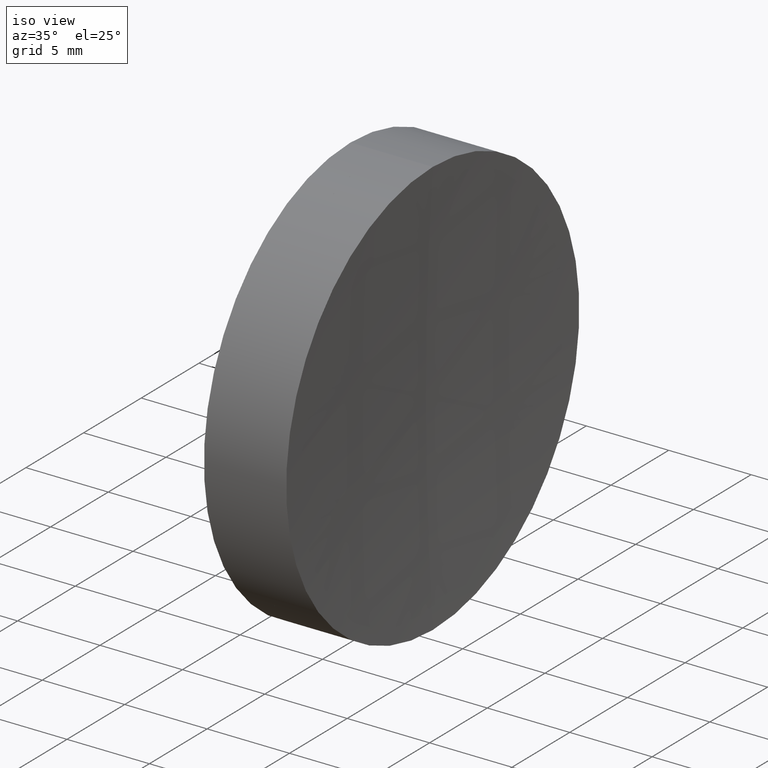
[diagram: clean part render]
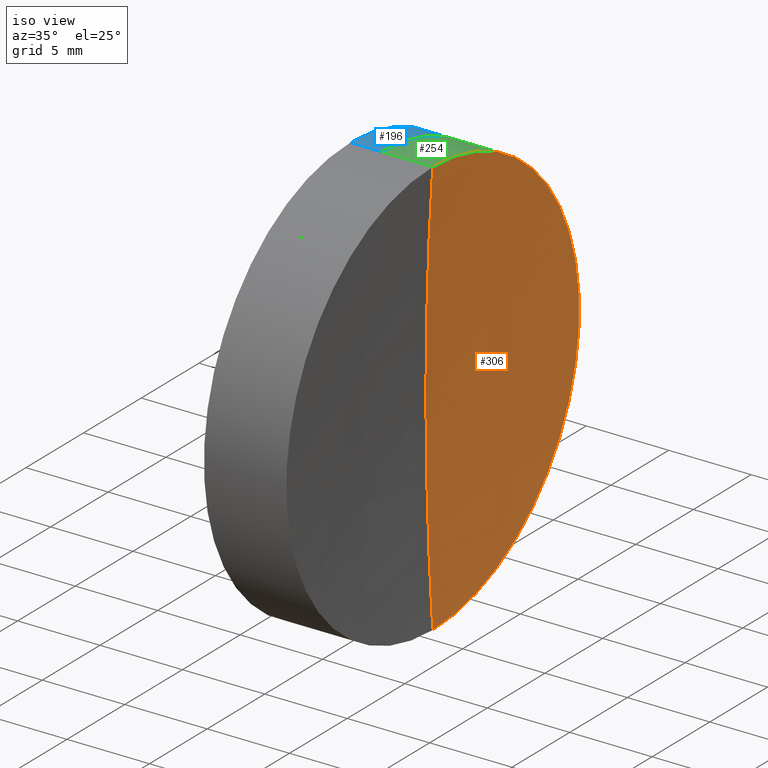
[diagram: same view with three faces highlighted in distinct colors, each labeled with its STEP entity id]
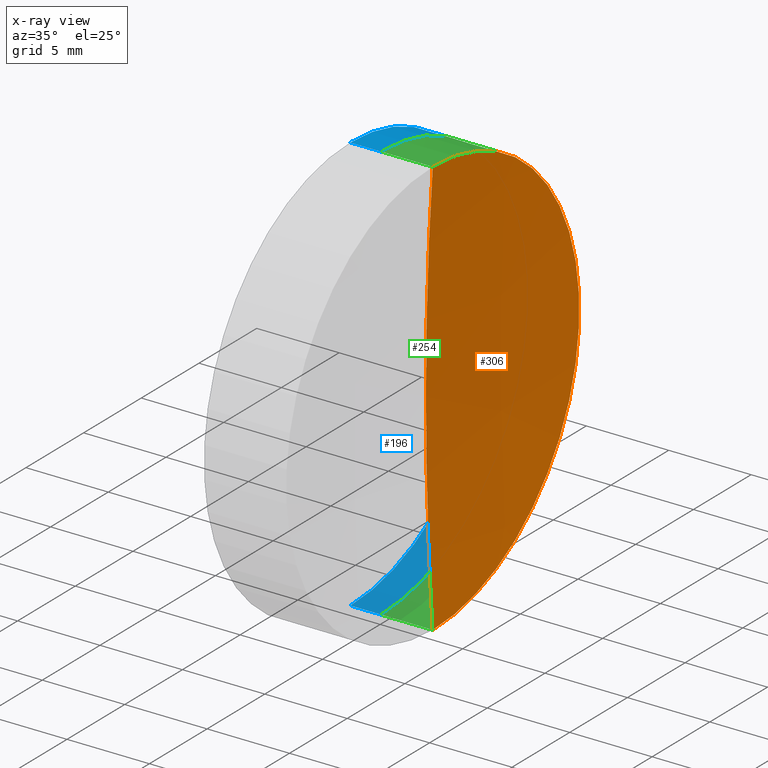
[diagram: x-ray of the same camera — body ghosted, the three highlighted faces saturated]
A machine part, iso view with three faces highlighted in distinct colors.
The next image is the same camera in x-ray (body ghosted, the three faces saturated) — at least one of them is partly hidden behind the body in this view.
Their STEP definitions:

[orange] entity #306 — the highlighted spherical surface has radius 194.54 mm.
#2 = VERTEX_POINT ( 'NONE', #332 ) ;
#21 = VERTEX_POINT ( 'NONE', #227 ) ;
#41 = DIRECTION ( 'NONE',  ( 0.0000000000000000000, 1.000000000000000000, -0.0000000000000000000 ) ) ;
#49 = DIRECTION ( 'NONE',  ( 0.0000000000000000000, -1.000000000000000000, -1.224646799147353200E-016 ) ) ;
#53 = CIRCLE ( 'NONE', #279, 194.5399999999999900 ) ;
#72 = ORIENTED_EDGE ( 'NONE', *, *, #161, .F. ) ;
#86 = DIRECTION ( 'NONE',  ( 0.0000000000000000000, 0.0000000000000000000, 1.000000000000000000 ) ) ;
#89 = CARTESIAN_POINT ( 'NONE',  ( 98.19036787198696500, -1.555301434917148100E-015, 12.70000000000007900 ) ) ;
#113 = DIRECTION ( 'NONE',  ( -1.000000000000000000, -0.0000000000000000000, -0.0000000000000000000 ) ) ;
#137 = FACE_OUTER_BOUND ( 'NONE', #176, .T. ) ;
#140 = AXIS2_PLACEMENT_3D ( 'NONE', #213, #328, #345 ) ;
#148 = ORIENTED_EDGE ( 'NONE', *, *, #217, .F. ) ;
#156 = ORIENTED_EDGE ( 'NONE', *, *, #322, .T. ) ;
#159 = DIRECTION ( 'NONE',  ( 0.0000000000000000000, 1.224646799147353200E-016, -1.000000000000000000 ) ) ;
#161 = EDGE_CURVE ( 'NONE', #174, #2, #251, .T. ) ;
#167 = CIRCLE ( 'NONE', #195, 194.5399999999999900 ) ;
#174 = VERTEX_POINT ( 'NONE', #89 ) ;
#176 = EDGE_LOOP ( 'NONE', ( #72, #156, #148 ) ) ;
#189 = AXIS2_PLACEMENT_3D ( 'NONE', #249, #113, #86 ) ;
#195 = AXIS2_PLACEMENT_3D ( 'NONE', #237, #49, #159 ) ;
#202 = CARTESIAN_POINT ( 'NONE',  ( 292.3153832615549300, 0.0000000000000000000, 0.0000000000000000000 ) ) ;
#213 = CARTESIAN_POINT ( 'NONE',  ( 292.3153832615549300, 0.0000000000000000000, 0.0000000000000000000 ) ) ;
#217 = EDGE_CURVE ( 'NONE', #2, #21, #53, .T. ) ;
#227 = CARTESIAN_POINT ( 'NONE',  ( 97.77538326155493600, 0.0000000000000000000, -1.191213941530630400E-014 ) ) ;
#229 = DIRECTION ( 'NONE',  ( 0.0000000000000000000, 0.0000000000000000000, 1.000000000000000000 ) ) ;
#237 = CARTESIAN_POINT ( 'NONE',  ( 292.3153832615549300, 0.0000000000000000000, 0.0000000000000000000 ) ) ;
#249 = CARTESIAN_POINT ( 'NONE',  ( 98.19036787198697900, 0.0000000000000000000, 0.0000000000000000000 ) ) ;
#251 = CIRCLE ( 'NONE', #189, 12.70000000000010100 ) ;
#279 = AXIS2_PLACEMENT_3D ( 'NONE', #202, #41, #229 ) ;
#306 = ADVANCED_FACE ( 'NONE', ( #137 ), #339, .F. ) ;
#322 = EDGE_CURVE ( 'NONE', #174, #21, #167, .T. ) ;
#328 = DIRECTION ( 'NONE',  ( -0.0000000000000000000, -1.000000000000000000, -0.0000000000000000000 ) ) ;
#332 = CARTESIAN_POINT ( 'NONE',  ( 98.19036787198696500, 0.0000000000000000000, -12.70000000000007900 ) ) ;
#339 = SPHERICAL_SURFACE ( 'NONE', #140, 194.5399999999999900 ) ;
#345 = DIRECTION ( 'NONE',  ( 0.0000000000000000000, 0.0000000000000000000, -1.000000000000000000 ) ) ;

[blue] entity #196 — the highlighted cylindrical surface (partial cylindrical patch) has radius 12.7 mm, axis along (-1, -0, -0).
#10 = ORIENTED_EDGE ( 'NONE', *, *, #198, .T. ) ;
#17 = EDGE_CURVE ( 'NONE', #218, #347, #48, .T. ) ;
#31 = CARTESIAN_POINT ( 'NONE',  ( -0.8160621761658039000, 0.0000000000000000000, 12.70000000000001700 ) ) ;
#33 = FACE_OUTER_BOUND ( 'NONE', #295, .T. ) ;
#39 = CARTESIAN_POINT ( 'NONE',  ( 95.07472966492228700, 0.0000000000000000000, 0.0000000000000000000 ) ) ;
#46 = AXIS2_PLACEMENT_3D ( 'NONE', #39, #199, #71 ) ;
#48 = LINE ( 'NONE', #31, #58 ) ;
#56 = EDGE_CURVE ( 'NONE', #347, #135, #78, .T. ) ;
#58 = VECTOR ( 'NONE', #223, 1000.000000000000000 ) ;
#59 = VERTEX_POINT ( 'NONE', #258 ) ;
#61 = DIRECTION ( 'NONE',  ( 0.0000000000000000000, 0.0000000000000000000, 1.000000000000000000 ) ) ;
#71 = DIRECTION ( 'NONE',  ( 0.0000000000000000000, 0.0000000000000000000, 1.000000000000000000 ) ) ;
#78 = CIRCLE ( 'NONE', #265, 12.70000000000001700 ) ;
#85 = DIRECTION ( 'NONE',  ( -1.000000000000000000, -0.0000000000000000000, -0.0000000000000000000 ) ) ;
#123 = ORIENTED_EDGE ( 'NONE', *, *, #184, .T. ) ;
#135 = VERTEX_POINT ( 'NONE', #307 ) ;
#163 = VECTOR ( 'NONE', #291, 1000.000000000000000 ) ;
#169 = ORIENTED_EDGE ( 'NONE', *, *, #17, .F. ) ;
#175 = DIRECTION ( 'NONE',  ( 0.0000000000000000000, 0.0000000000000000000, 1.000000000000000000 ) ) ;
#184 = EDGE_CURVE ( 'NONE', #218, #59, #275, .T. ) ;
#196 = ADVANCED_FACE ( 'NONE', ( #33 ), #203, .T. ) ;
#198 = EDGE_CURVE ( 'NONE', #59, #135, #266, .T. ) ;
#199 = DIRECTION ( 'NONE',  ( -1.000000000000000000, -0.0000000000000000000, -0.0000000000000000000 ) ) ;
#203 = CYLINDRICAL_SURFACE ( 'NONE', #319, 12.70000000000001700 ) ;
#218 = VERTEX_POINT ( 'NONE', #267 ) ;
#223 = DIRECTION ( 'NONE',  ( -1.000000000000000000, -0.0000000000000000000, -0.0000000000000000000 ) ) ;
#226 = DIRECTION ( 'NONE',  ( -1.000000000000000000, -0.0000000000000000000, -0.0000000000000000000 ) ) ;
#248 = CARTESIAN_POINT ( 'NONE',  ( 93.19768497055619600, 0.0000000000000000000, 0.0000000000000000000 ) ) ;
#258 = CARTESIAN_POINT ( 'NONE',  ( 95.07472966492228700, 1.555301434917141000E-015, -12.70000000000002100 ) ) ;
#264 = CARTESIAN_POINT ( 'NONE',  ( -0.8160621761658039000, 1.555301434917140600E-015, -12.70000000000001700 ) ) ;
#265 = AXIS2_PLACEMENT_3D ( 'NONE', #248, #85, #61 ) ;
#266 = LINE ( 'NONE', #264, #163 ) ;
#267 = CARTESIAN_POINT ( 'NONE',  ( 95.07472966492228700, 0.0000000000000000000, 12.70000000000001900 ) ) ;
#275 = CIRCLE ( 'NONE', #46, 12.70000000000001900 ) ;
#288 = ORIENTED_EDGE ( 'NONE', *, *, #56, .F. ) ;
#291 = DIRECTION ( 'NONE',  ( -1.000000000000000000, -0.0000000000000000000, -0.0000000000000000000 ) ) ;
#295 = EDGE_LOOP ( 'NONE', ( #123, #10, #288, #169 ) ) ;
#307 = CARTESIAN_POINT ( 'NONE',  ( 93.19768497055619600, 0.0000000000000000000, -12.69999999999996900 ) ) ;
#319 = AXIS2_PLACEMENT_3D ( 'NONE', #338, #226, #175 ) ;
#338 = CARTESIAN_POINT ( 'NONE',  ( -0.8160621761658039000, 0.0000000000000000000, 0.0000000000000000000 ) ) ;
#344 = CARTESIAN_POINT ( 'NONE',  ( 93.19768497055619600, -1.555301434917134900E-015, 12.70000000000003500 ) ) ;
#347 = VERTEX_POINT ( 'NONE', #344 ) ;

[green] entity #254 — the highlighted cylindrical surface (partial cylindrical patch) has radius 12.7 mm, axis along (-1, -0, -0).
#2 = VERTEX_POINT ( 'NONE', #332 ) ;
#4 = VERTEX_POINT ( 'NONE', #94 ) ;
#7 = CARTESIAN_POINT ( 'NONE',  ( -0.5519199926577972300, 1.555301434917150900E-015, -12.70000000000010100 ) ) ;
#29 = DIRECTION ( 'NONE',  ( -1.000000000000000000, -0.0000000000000000000, -0.0000000000000000000 ) ) ;
#35 = CARTESIAN_POINT ( 'NONE',  ( -0.5519199926577972300, 0.0000000000000000000, 12.70000000000010100 ) ) ;
#69 = ORIENTED_EDGE ( 'NONE', *, *, #108, .T. ) ;
#80 = LINE ( 'NONE', #7, #158 ) ;
#86 = DIRECTION ( 'NONE',  ( 0.0000000000000000000, 0.0000000000000000000, 1.000000000000000000 ) ) ;
#89 = CARTESIAN_POINT ( 'NONE',  ( 98.19036787198696500, -1.555301434917148100E-015, 12.70000000000007900 ) ) ;
#90 = DIRECTION ( 'NONE',  ( -1.000000000000000000, -0.0000000000000000000, -0.0000000000000000000 ) ) ;
#94 = CARTESIAN_POINT ( 'NONE',  ( 95.07472966492230200, 0.0000000000000000000, 12.70000000000002100 ) ) ;
#97 = ORIENTED_EDGE ( 'NONE', *, *, #161, .T. ) ;
#108 = EDGE_CURVE ( 'NONE', #2, #197, #80, .T. ) ;
#109 = CYLINDRICAL_SURFACE ( 'NONE', #222, 12.70000000000010100 ) ;
#113 = DIRECTION ( 'NONE',  ( -1.000000000000000000, -0.0000000000000000000, -0.0000000000000000000 ) ) ;
#118 = AXIS2_PLACEMENT_3D ( 'NONE', #149, #341, #181 ) ;
#128 = ORIENTED_EDGE ( 'NONE', *, *, #225, .F. ) ;
#131 = EDGE_CURVE ( 'NONE', #174, #4, #317, .T. ) ;
#149 = CARTESIAN_POINT ( 'NONE',  ( 95.07472966492230200, 0.0000000000000000000, 0.0000000000000000000 ) ) ;
#150 = VECTOR ( 'NONE', #90, 1000.000000000000000 ) ;
#151 = CARTESIAN_POINT ( 'NONE',  ( -0.5519199926577972300, 0.0000000000000000000, 0.0000000000000000000 ) ) ;
#158 = VECTOR ( 'NONE', #29, 1000.000000000000000 ) ;
#161 = EDGE_CURVE ( 'NONE', #174, #2, #251, .T. ) ;
#174 = VERTEX_POINT ( 'NONE', #89 ) ;
#181 = DIRECTION ( 'NONE',  ( 0.0000000000000000000, 0.0000000000000000000, 1.000000000000000000 ) ) ;
#186 = FACE_OUTER_BOUND ( 'NONE', #337, .T. ) ;
#189 = AXIS2_PLACEMENT_3D ( 'NONE', #249, #113, #86 ) ;
#194 = CIRCLE ( 'NONE', #118, 12.70000000000010100 ) ;
#197 = VERTEX_POINT ( 'NONE', #230 ) ;
#222 = AXIS2_PLACEMENT_3D ( 'NONE', #151, #268, #342 ) ;
#225 = EDGE_CURVE ( 'NONE', #4, #197, #194, .T. ) ;
#230 = CARTESIAN_POINT ( 'NONE',  ( 95.07472966492230200, 1.555301434917141200E-015, -12.70000000000006500 ) ) ;
#249 = CARTESIAN_POINT ( 'NONE',  ( 98.19036787198697900, 0.0000000000000000000, 0.0000000000000000000 ) ) ;
#251 = CIRCLE ( 'NONE', #189, 12.70000000000010100 ) ;
#254 = ADVANCED_FACE ( 'NONE', ( #186 ), #109, .T. ) ;
#268 = DIRECTION ( 'NONE',  ( -1.000000000000000000, -0.0000000000000000000, -0.0000000000000000000 ) ) ;
#277 = ORIENTED_EDGE ( 'NONE', *, *, #131, .F. ) ;
#317 = LINE ( 'NONE', #35, #150 ) ;
#332 = CARTESIAN_POINT ( 'NONE',  ( 98.19036787198696500, 0.0000000000000000000, -12.70000000000007900 ) ) ;
#337 = EDGE_LOOP ( 'NONE', ( #97, #69, #128, #277 ) ) ;
#341 = DIRECTION ( 'NONE',  ( -1.000000000000000000, -0.0000000000000000000, -0.0000000000000000000 ) ) ;
#342 = DIRECTION ( 'NONE',  ( 0.0000000000000000000, 0.0000000000000000000, 1.000000000000000000 ) ) ;